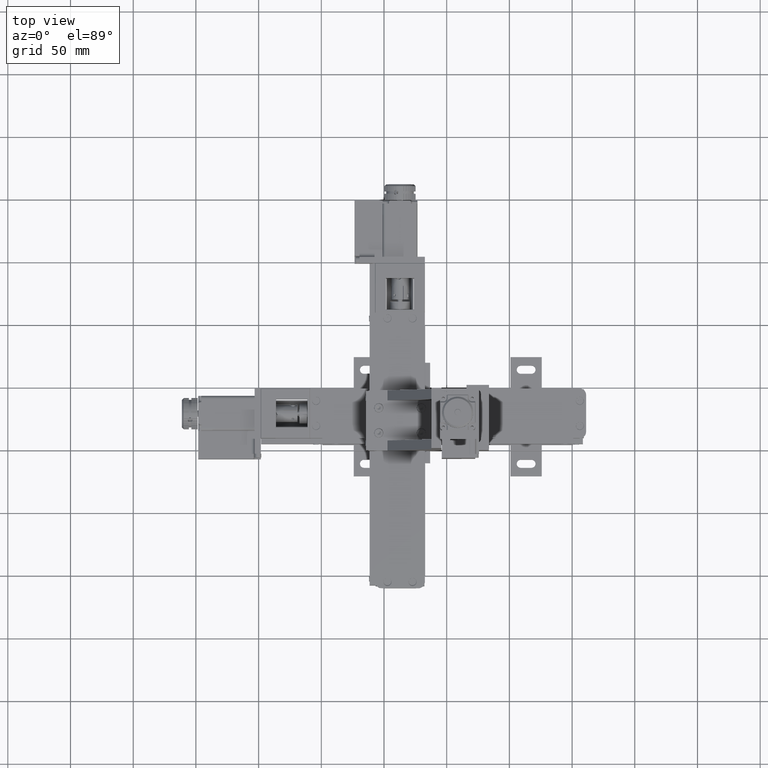
[diagram: clean part render]
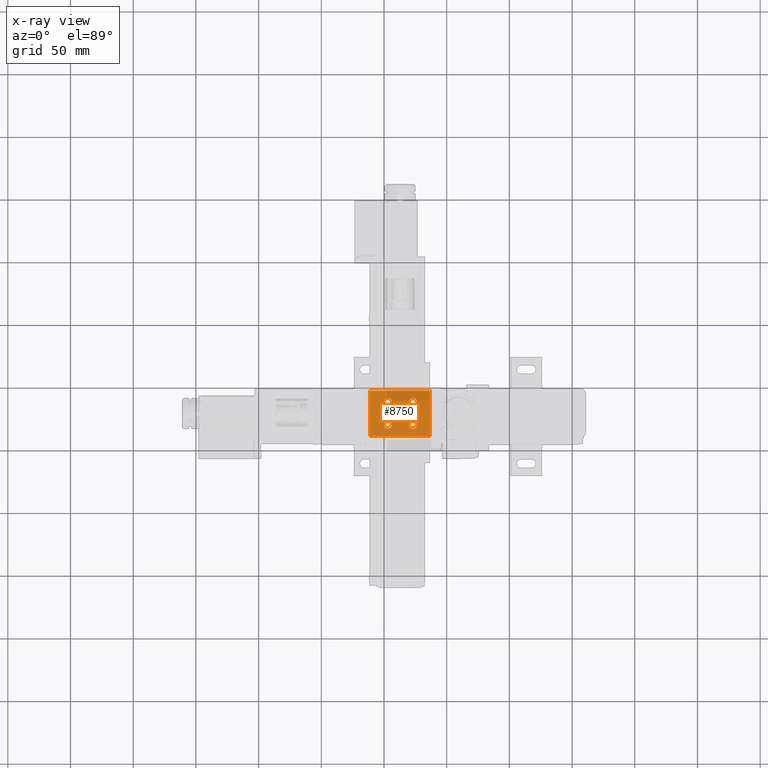
[diagram: x-ray — body ghosted, one internal face saturated and labeled with its STEP entity id]
A machine part, top view, then the same camera in x-ray: the body is ghosted and one INTERNAL B-rep face — a face not visible from any outside direction — is saturated and labeled: STEP entity #8750.
In plain terms, the highlighted planar face has unit normal (0, 0, 1).
Its self-contained STEP definition (entity closure, byte-faithful):
#327=FACE_BOUND('',#22587,.T.);
#328=FACE_BOUND('',#22588,.T.);
#329=FACE_BOUND('',#22589,.T.);
#330=FACE_BOUND('',#22590,.T.);
#3455=PLANE('',#122482);
#8750=ADVANCED_FACE('',(#15512,#327,#328,#329,#330),#3455,.T.);
#15512=FACE_OUTER_BOUND('',#22586,.T.);
#22586=EDGE_LOOP('',(#45467,#45468,#45469,#45470));
#22587=EDGE_LOOP('',(#45471,#45472));
#22588=EDGE_LOOP('',(#45473,#45474));
#22589=EDGE_LOOP('',(#45475,#45476));
#22590=EDGE_LOOP('',(#45477,#45478));
#45467=ORIENTED_EDGE('',*,*,#75228,.T.);
#45468=ORIENTED_EDGE('',*,*,#75340,.F.);
#45469=ORIENTED_EDGE('',*,*,#75341,.F.);
#45470=ORIENTED_EDGE('',*,*,#75339,.F.);
#45471=ORIENTED_EDGE('',*,*,#75299,.T.);
#45472=ORIENTED_EDGE('',*,*,#84104,.T.);
#45473=ORIENTED_EDGE('',*,*,#75310,.T.);
#45474=ORIENTED_EDGE('',*,*,#84111,.T.);
#45475=ORIENTED_EDGE('',*,*,#75321,.T.);
#45476=ORIENTED_EDGE('',*,*,#84118,.T.);
#45477=ORIENTED_EDGE('',*,*,#75332,.T.);
#45478=ORIENTED_EDGE('',*,*,#84125,.T.);
#75228=EDGE_CURVE('',#111236,#111235,#91689,.T.);
#75299=EDGE_CURVE('',#111278,#116956,#100906,.T.);
#75310=EDGE_CURVE('',#111284,#116960,#100914,.T.);
#75321=EDGE_CURVE('',#111290,#116964,#100922,.T.);
#75332=EDGE_CURVE('',#111296,#116968,#100930,.T.);
#75339=EDGE_CURVE('',#111236,#111298,#91713,.T.);
#75340=EDGE_CURVE('',#111299,#111235,#91714,.T.);
#75341=EDGE_CURVE('',#111298,#111299,#91715,.T.);
#84104=EDGE_CURVE('',#116956,#111278,#103933,.T.);
#84111=EDGE_CURVE('',#116960,#111284,#103937,.T.);
#84118=EDGE_CURVE('',#116964,#111290,#103941,.T.);
#84125=EDGE_CURVE('',#116968,#111296,#103945,.T.);
#91689=B_SPLINE_CURVE_WITH_KNOTS('',1,(#200711,#200712),.UNSPECIFIED.,.F.,
 .F.,(2,2),(-47.9999999999999,0.),.UNSPECIFIED.);
#91713=B_SPLINE_CURVE_WITH_KNOTS('',1,(#201086,#201087),.UNSPECIFIED.,.F.,
 .F.,(2,2),(-36.,0.),.UNSPECIFIED.);
#91714=B_SPLINE_CURVE_WITH_KNOTS('',1,(#201088,#201089),.UNSPECIFIED.,.F.,
 .F.,(2,2),(-36.,0.),.UNSPECIFIED.);
#91715=B_SPLINE_CURVE_WITH_KNOTS('',1,(#201090,#201091),.UNSPECIFIED.,.F.,
 .F.,(2,2),(-48.0000000000001,0.),.UNSPECIFIED.);
#100906=(
BOUNDED_CURVE()
B_SPLINE_CURVE(2,(#200919,#200920,#200921,#200922,#200923),
 .UNSPECIFIED.,.F.,.F.)
B_SPLINE_CURVE_WITH_KNOTS((3,2,3),(-20.4203522483337,-15.3152641862502,
-10.2101761241668),.UNSPECIFIED.)
CURVE()
GEOMETRIC_REPRESENTATION_ITEM()
RATIONAL_B_SPLINE_CURVE((1.,0.707106781186548,1.,0.707106781186548,1.))
REPRESENTATION_ITEM('')
);
#100914=(
BOUNDED_CURVE()
B_SPLINE_CURVE(2,(#200965,#200966,#200967,#200968,#200969),
 .UNSPECIFIED.,.F.,.F.)
B_SPLINE_CURVE_WITH_KNOTS((3,2,3),(-20.4203522483337,-15.3152641862502,
-10.2101761241668),.UNSPECIFIED.)
CURVE()
GEOMETRIC_REPRESENTATION_ITEM()
RATIONAL_B_SPLINE_CURVE((1.,0.707106781186548,1.,0.707106781186548,1.))
REPRESENTATION_ITEM('')
);
#100922=(
BOUNDED_CURVE()
B_SPLINE_CURVE(2,(#201011,#201012,#201013,#201014,#201015),
 .UNSPECIFIED.,.F.,.F.)
B_SPLINE_CURVE_WITH_KNOTS((3,2,3),(-20.4203522483337,-15.3152641862502,
-10.2101761241668),.UNSPECIFIED.)
CURVE()
GEOMETRIC_REPRESENTATION_ITEM()
RATIONAL_B_SPLINE_CURVE((1.,0.707106781186548,1.,0.707106781186548,1.))
REPRESENTATION_ITEM('')
);
#100930=(
BOUNDED_CURVE()
B_SPLINE_CURVE(2,(#201057,#201058,#201059,#201060,#201061),
 .UNSPECIFIED.,.F.,.F.)
B_SPLINE_CURVE_WITH_KNOTS((3,2,3),(-20.4203522483337,-15.3152641862502,
-10.2101761241668),.UNSPECIFIED.)
CURVE()
GEOMETRIC_REPRESENTATION_ITEM()
RATIONAL_B_SPLINE_CURVE((1.,0.707106781186548,1.,0.707106781186548,1.))
REPRESENTATION_ITEM('')
);
#103933=(
BOUNDED_CURVE()
B_SPLINE_CURVE(2,(#227217,#227218,#227219,#227220,#227221),
 .UNSPECIFIED.,.F.,.F.)
B_SPLINE_CURVE_WITH_KNOTS((3,2,3),(-10.2101761241668,-5.10508806208341,
0.),.UNSPECIFIED.)
CURVE()
GEOMETRIC_REPRESENTATION_ITEM()
RATIONAL_B_SPLINE_CURVE((1.,0.707106781186548,1.,0.707106781186548,1.))
REPRESENTATION_ITEM('')
);
#103937=(
BOUNDED_CURVE()
B_SPLINE_CURVE(2,(#227243,#227244,#227245,#227246,#227247),
 .UNSPECIFIED.,.F.,.F.)
B_SPLINE_CURVE_WITH_KNOTS((3,2,3),(-10.2101761241668,-5.10508806208341,
0.),.UNSPECIFIED.)
CURVE()
GEOMETRIC_REPRESENTATION_ITEM()
RATIONAL_B_SPLINE_CURVE((1.,0.707106781186548,1.,0.707106781186548,1.))
REPRESENTATION_ITEM('')
);
#103941=(
BOUNDED_CURVE()
B_SPLINE_CURVE(2,(#227269,#227270,#227271,#227272,#227273),
 .UNSPECIFIED.,.F.,.F.)
B_SPLINE_CURVE_WITH_KNOTS((3,2,3),(-10.2101761241668,-5.10508806208341,
0.),.UNSPECIFIED.)
CURVE()
GEOMETRIC_REPRESENTATION_ITEM()
RATIONAL_B_SPLINE_CURVE((1.,0.707106781186548,1.,0.707106781186548,1.))
REPRESENTATION_ITEM('')
);
#103945=(
BOUNDED_CURVE()
B_SPLINE_CURVE(2,(#227295,#227296,#227297,#227298,#227299),
 .UNSPECIFIED.,.F.,.F.)
B_SPLINE_CURVE_WITH_KNOTS((3,2,3),(-10.2101761241668,-5.10508806208341,
0.),.UNSPECIFIED.)
CURVE()
GEOMETRIC_REPRESENTATION_ITEM()
RATIONAL_B_SPLINE_CURVE((1.,0.707106781186548,1.,0.707106781186548,1.))
REPRESENTATION_ITEM('')
);
#111235=VERTEX_POINT('',#166229);
#111236=VERTEX_POINT('',#166230);
#111278=VERTEX_POINT('',#166272);
#111284=VERTEX_POINT('',#166278);
#111290=VERTEX_POINT('',#166284);
#111296=VERTEX_POINT('',#166290);
#111298=VERTEX_POINT('',#166292);
#111299=VERTEX_POINT('',#166293);
#116956=VERTEX_POINT('',#171950);
#116960=VERTEX_POINT('',#171954);
#116964=VERTEX_POINT('',#171958);
#116968=VERTEX_POINT('',#171962);
#122482=AXIS2_PLACEMENT_3D('',#143457,#128657,$);
#128657=DIRECTION('',(0.,0.,1.));
#143457=CARTESIAN_POINT('',(41.6760922200091,0.870004365949477,33.4990205352405));
#166229=CARTESIAN_POINT('',(36.7560922200087,-38.8499956340508,33.499020535239));
#166230=CARTESIAN_POINT('',(-11.2439077799912,-38.8499956340506,33.4990205352391));
#166272=CARTESIAN_POINT('',(23.0560922200087,-15.0999956340508,33.4990205352399));
#166278=CARTESIAN_POINT('',(3.05609222000883,-15.0999956340507,33.4990205352399));
#166284=CARTESIAN_POINT('',(3.05609222000883,-33.0999956340506,33.4990205352392));
#166290=CARTESIAN_POINT('',(23.0560922200087,-33.0999956340507,33.4990205352392));
#166292=CARTESIAN_POINT('',(-11.2439077799912,-2.84999563405054,33.4990205352404));
#166293=CARTESIAN_POINT('',(36.7560922200089,-2.84999563405076,33.4990205352403));
#171950=CARTESIAN_POINT('',(23.0560922200089,-8.59999563405076,33.4990205352401));
#171954=CARTESIAN_POINT('',(3.05609222000883,-8.59999563405066,33.4990205352402));
#171958=CARTESIAN_POINT('',(3.05609222000883,-26.5999956340507,33.4990205352395));
#171962=CARTESIAN_POINT('',(23.0560922200087,-26.5999956340507,33.4990205352395));
#200711=CARTESIAN_POINT('',(-11.2439077799912,-38.8499956340506,33.4990205352391));
#200712=CARTESIAN_POINT('',(36.7560922200087,-38.8499956340508,33.499020535239));
#200919=CARTESIAN_POINT('',(23.0560922200087,-15.0999956340508,33.4990205352399));
#200920=CARTESIAN_POINT('',(19.8060922200087,-15.0999956340507,33.4990205352399));
#200921=CARTESIAN_POINT('',(19.8060922200088,-11.8499956340507,33.49902053524));
#200922=CARTESIAN_POINT('',(19.8060922200089,-8.59999563405066,33.4990205352401));
#200923=CARTESIAN_POINT('',(23.0560922200089,-8.59999563405076,33.4990205352401));
#200965=CARTESIAN_POINT('',(3.05609222000883,-15.0999956340507,33.4990205352399));
#200966=CARTESIAN_POINT('',(-0.193907779991172,-15.0999956340507,33.4990205352399));
#200967=CARTESIAN_POINT('',(-0.193907779991171,-11.8499956340507,33.49902053524));
#200968=CARTESIAN_POINT('',(-0.193907779991172,-8.59999563405066,33.4990205352402));
#200969=CARTESIAN_POINT('',(3.05609222000883,-8.59999563405066,33.4990205352402));
#201011=CARTESIAN_POINT('',(3.05609222000883,-33.0999956340507,33.4990205352392));
#201012=CARTESIAN_POINT('',(-0.193907779991172,-33.0999956340506,33.4990205352392));
#201013=CARTESIAN_POINT('',(-0.193907779991171,-29.8499956340507,33.4990205352394));
#201014=CARTESIAN_POINT('',(-0.193907779991172,-26.5999956340506,33.4990205352395));
#201015=CARTESIAN_POINT('',(3.05609222000883,-26.5999956340507,33.4990205352395));
#201057=CARTESIAN_POINT('',(23.0560922200087,-33.0999956340507,33.4990205352392));
#201058=CARTESIAN_POINT('',(19.8060922200087,-33.0999956340507,33.4990205352392));
#201059=CARTESIAN_POINT('',(19.8060922200087,-29.8499956340507,33.4990205352393));
#201060=CARTESIAN_POINT('',(19.8060922200087,-26.5999956340507,33.4990205352394));
#201061=CARTESIAN_POINT('',(23.0560922200087,-26.5999956340507,33.4990205352395));
#201086=CARTESIAN_POINT('',(-11.2439077799912,-38.8499956340506,33.4990205352391));
#201087=CARTESIAN_POINT('',(-11.2439077799912,-2.84999563405054,33.4990205352404));
#201088=CARTESIAN_POINT('',(36.7560922200089,-2.84999563405076,33.4990205352403));
#201089=CARTESIAN_POINT('',(36.7560922200087,-38.8499956340508,33.499020535239));
#201090=CARTESIAN_POINT('',(-11.2439077799912,-2.84999563405054,33.4990205352404));
#201091=CARTESIAN_POINT('',(36.7560922200089,-2.84999563405076,33.4990205352403));
#227217=CARTESIAN_POINT('',(23.0560922200089,-8.59999563405076,33.4990205352401));
#227218=CARTESIAN_POINT('',(26.3060922200089,-8.59999563405086,33.4990205352401));
#227219=CARTESIAN_POINT('',(26.3060922200088,-11.8499956340509,33.49902053524));
#227220=CARTESIAN_POINT('',(26.3060922200087,-15.0999956340509,33.4990205352399));
#227221=CARTESIAN_POINT('',(23.0560922200087,-15.0999956340508,33.4990205352399));
#227243=CARTESIAN_POINT('',(3.05609222000883,-8.59999563405066,33.4990205352402));
#227244=CARTESIAN_POINT('',(6.30609222000883,-8.59999563405066,33.4990205352402));
#227245=CARTESIAN_POINT('',(6.30609222000883,-11.8499956340507,33.49902053524));
#227246=CARTESIAN_POINT('',(6.30609222000883,-15.0999956340507,33.4990205352399));
#227247=CARTESIAN_POINT('',(3.05609222000883,-15.0999956340507,33.4990205352399));
#227269=CARTESIAN_POINT('',(3.05609222000883,-26.5999956340507,33.4990205352395));
#227270=CARTESIAN_POINT('',(6.30609222000883,-26.5999956340506,33.4990205352395));
#227271=CARTESIAN_POINT('',(6.30609222000883,-29.8499956340507,33.4990205352394));
#227272=CARTESIAN_POINT('',(6.30609222000883,-33.0999956340506,33.4990205352392));
#227273=CARTESIAN_POINT('',(3.05609222000883,-33.0999956340507,33.4990205352392));
#227295=CARTESIAN_POINT('',(23.0560922200087,-26.5999956340507,33.4990205352395));
#227296=CARTESIAN_POINT('',(26.3060922200087,-26.5999956340507,33.4990205352394));
#227297=CARTESIAN_POINT('',(26.3060922200087,-29.8499956340507,33.4990205352393));
#227298=CARTESIAN_POINT('',(26.3060922200087,-33.0999956340507,33.4990205352392));
#227299=CARTESIAN_POINT('',(23.0560922200087,-33.0999956340507,33.4990205352392));